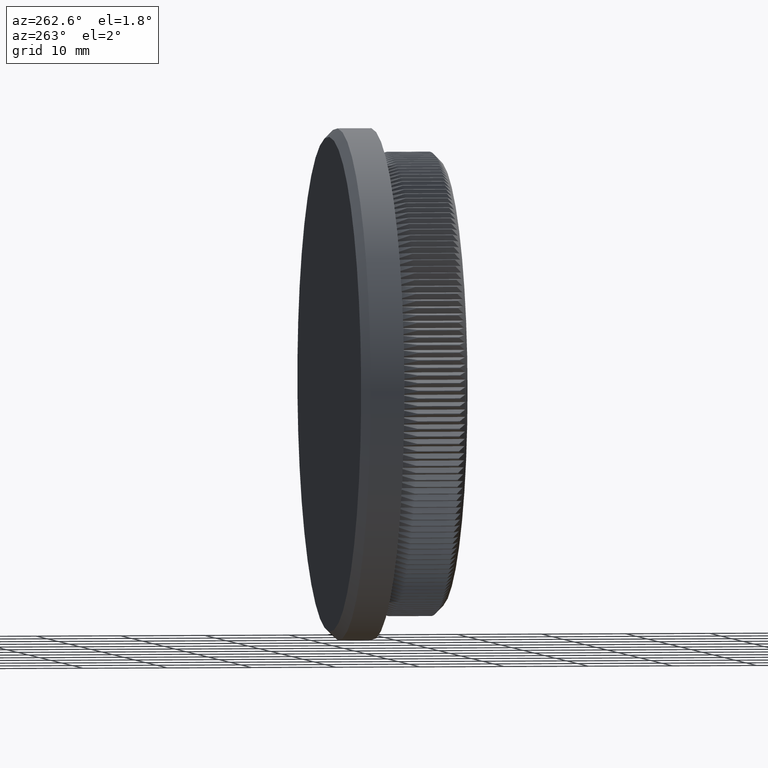
[diagram: clean part render]
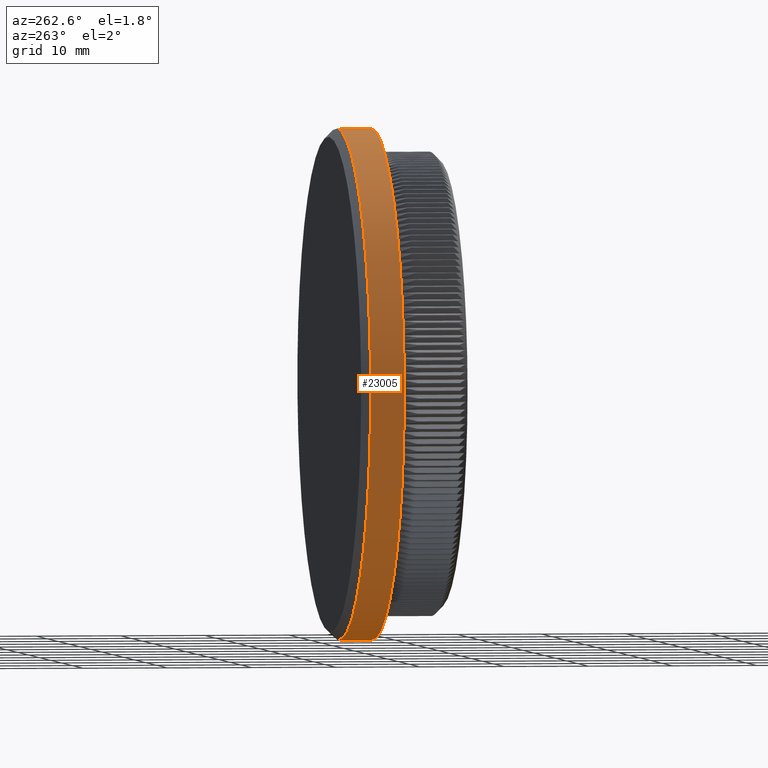
[diagram: same view with one face highlighted and labeled with its STEP entity id]
A machine part, auxiliary view. The second image highlights one B-rep face of the part: STEP entity #23005.
In plain terms, the highlighted cylindrical surface (partial cylindrical patch) has radius 30.15 mm, axis along (-0, -1, -0).
Its self-contained STEP definition (entity closure, byte-faithful):
#43 = DIRECTION ( 'NONE',  ( -0.000000000000000000, -1.000000000000000000, -0.000000000000000000 ) ) ;
#669 = CYLINDRICAL_SURFACE ( 'NONE', #40819, 30.14999999999999503 ) ;
#694 = EDGE_LOOP ( 'NONE', ( #39690, #35489, #28136, #31453 ) ) ;
#2323 = DIRECTION ( 'NONE',  ( 0.000000000000000000, 0.000000000000000000, -1.000000000000000000 ) ) ;
#2802 = DIRECTION ( 'NONE',  ( -0.000000000000000000, -1.000000000000000000, -0.000000000000000000 ) ) ;
#3951 = VERTEX_POINT ( 'NONE', #31040 ) ;
#4249 = VECTOR ( 'NONE', #39475, 1000.000000000000000 ) ;
#5040 = EDGE_CURVE ( 'NONE', #36743, #3951, #38472, .T. ) ;
#5315 = CARTESIAN_POINT ( 'NONE',  ( 0.000000000000000000, 8.000000000000000000, 0.000000000000000000 ) ) ;
#8081 = DIRECTION ( 'NONE',  ( -0.000000000000000000, -1.000000000000000000, -0.000000000000000000 ) ) ;
#9164 = VERTEX_POINT ( 'NONE', #23572 ) ;
#9740 = EDGE_CURVE ( 'NONE', #36743, #25975, #29040, .T. ) ;
#11318 = FACE_OUTER_BOUND ( 'NONE', #694, .T. ) ;
#11953 = EDGE_CURVE ( 'NONE', #3951, #9164, #39933, .T. ) ;
#12082 = LINE ( 'NONE', #16402, #18218 ) ;
#16402 = CARTESIAN_POINT ( 'NONE',  ( 0.000000000000000000, 0.000000000000000000, -30.14999999999999503 ) ) ;
#16583 = EDGE_CURVE ( 'NONE', #25975, #9164, #12082, .T. ) ;
#17177 = CARTESIAN_POINT ( 'NONE',  ( 3.692310099429269608E-15, 0.000000000000000000, 30.14999999999999503 ) ) ;
#18218 = VECTOR ( 'NONE', #8081, 1000.000000000000000 ) ;
#19234 = DIRECTION ( 'NONE',  ( 0.000000000000000000, 0.000000000000000000, 1.000000000000000000 ) ) ;
#20066 = CARTESIAN_POINT ( 'NONE',  ( 3.692310099429269608E-15, 11.99999999999998757, 30.14999999999999503 ) ) ;
#21719 = CARTESIAN_POINT ( 'NONE',  ( 0.000000000000000000, 0.000000000000000000, 0.000000000000000000 ) ) ;
#21765 = CARTESIAN_POINT ( 'NONE',  ( 0.000000000000000000, 11.99999999999998757, -30.14999999999999503 ) ) ;
#23005 = ADVANCED_FACE ( 'NONE', ( #11318 ), #669, .T. ) ;
#23572 = CARTESIAN_POINT ( 'NONE',  ( 0.000000000000000000, 8.000000000000000000, -30.14999999999999147 ) ) ;
#25975 = VERTEX_POINT ( 'NONE', #21765 ) ;
#26369 = AXIS2_PLACEMENT_3D ( 'NONE', #5315, #28114, #2323 ) ;
#28114 = DIRECTION ( 'NONE',  ( -0.000000000000000000, -1.000000000000000000, -0.000000000000000000 ) ) ;
#28136 = ORIENTED_EDGE ( 'NONE', *, *, #16583, .T. ) ;
#28314 = DIRECTION ( 'NONE',  ( 0.000000000000000000, 0.000000000000000000, -1.000000000000000000 ) ) ;
#29040 = CIRCLE ( 'NONE', #38398, 30.14999999999999503 ) ;
#31040 = CARTESIAN_POINT ( 'NONE',  ( 3.692310099429268819E-15, 8.000000000000000000, 30.14999999999999147 ) ) ;
#31453 = ORIENTED_EDGE ( 'NONE', *, *, #11953, .F. ) ;
#35489 = ORIENTED_EDGE ( 'NONE', *, *, #9740, .T. ) ;
#36743 = VERTEX_POINT ( 'NONE', #20066 ) ;
#38398 = AXIS2_PLACEMENT_3D ( 'NONE', #38863, #43, #19234 ) ;
#38472 = LINE ( 'NONE', #17177, #4249 ) ;
#38863 = CARTESIAN_POINT ( 'NONE',  ( 0.000000000000000000, 11.99999999999998757, 0.000000000000000000 ) ) ;
#39475 = DIRECTION ( 'NONE',  ( -0.000000000000000000, -1.000000000000000000, -0.000000000000000000 ) ) ;
#39690 = ORIENTED_EDGE ( 'NONE', *, *, #5040, .F. ) ;
#39933 = CIRCLE ( 'NONE', #26369, 30.14999999999999147 ) ;
#40819 = AXIS2_PLACEMENT_3D ( 'NONE', #21719, #2802, #28314 ) ;